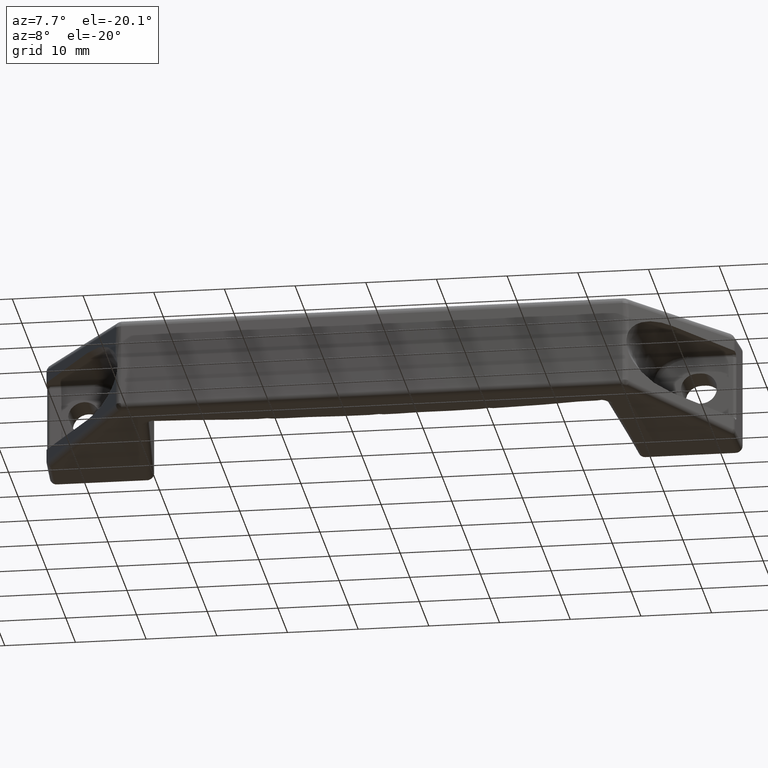
[diagram: clean part render]
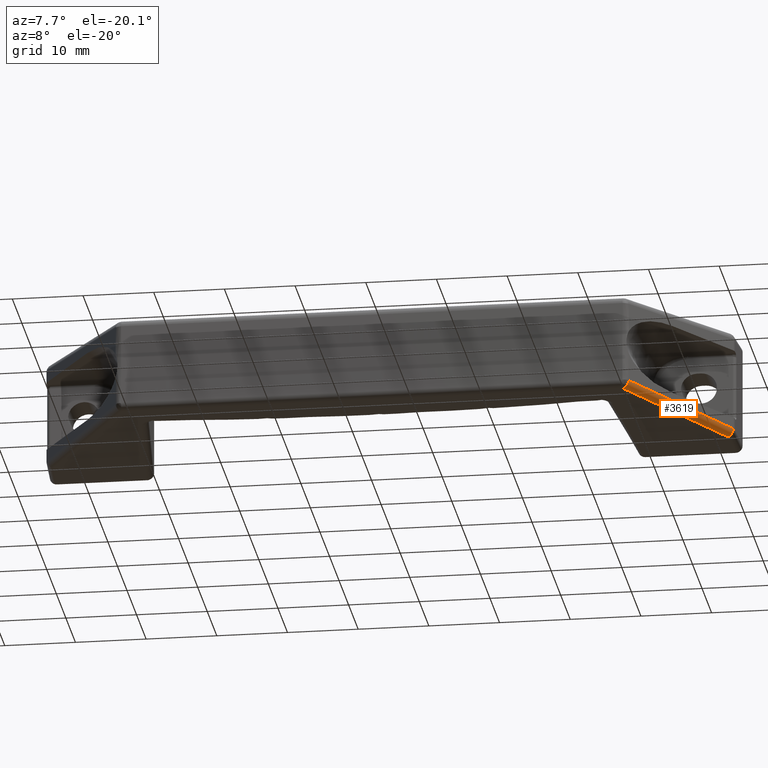
[diagram: same view with one face highlighted and labeled with its STEP entity id]
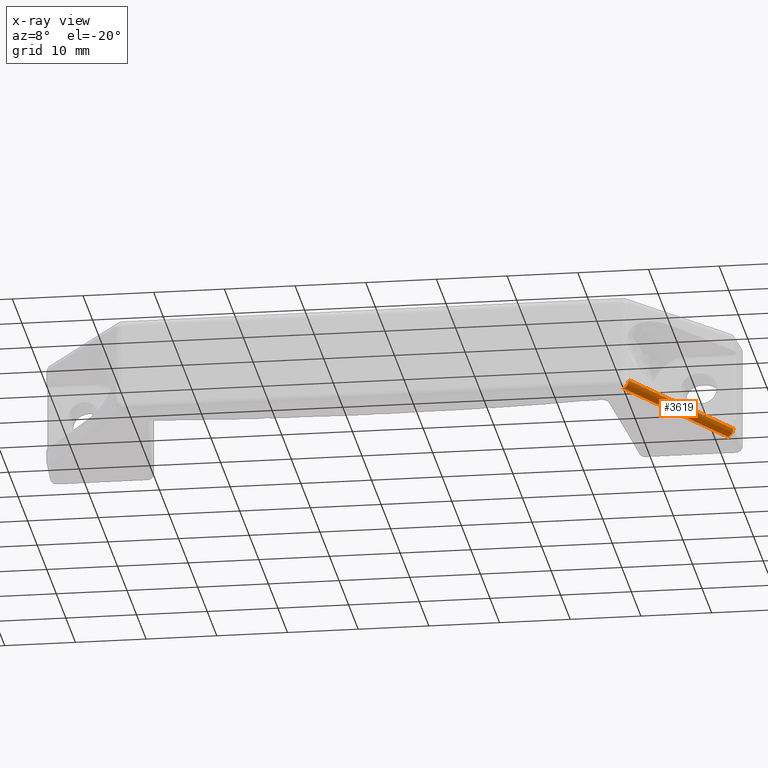
[diagram: x-ray of the same camera — body ghosted, the highlighted face saturated]
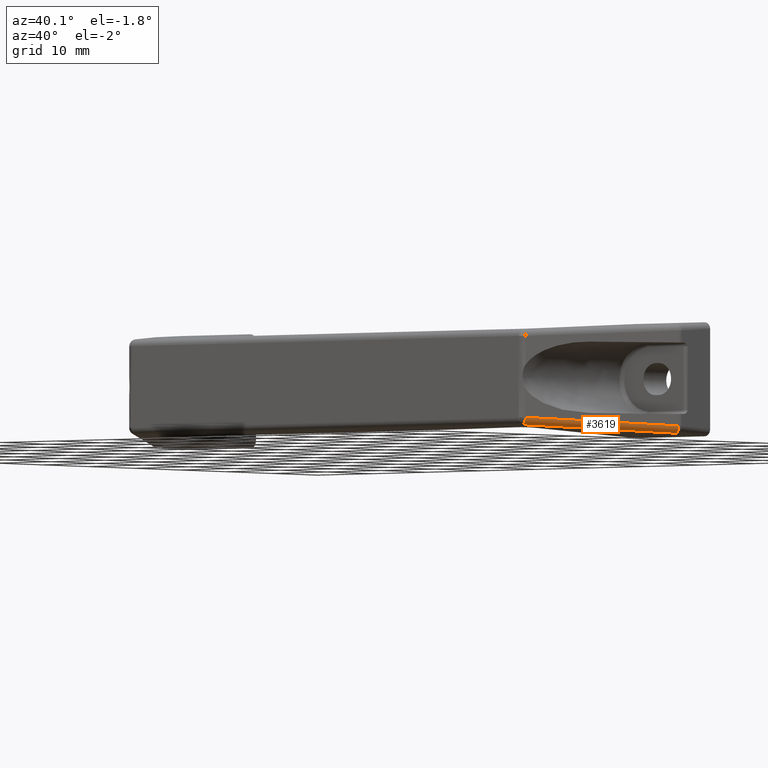
[diagram: same view with one face highlighted and labeled with its STEP entity id]
A machine part, auxiliary view. The second image highlights one B-rep face of the part: STEP entity #3619.
The next image is the same camera in x-ray: the body ghosted, the highlighted face saturated — about 0% of this face is hidden behind the body in this view.
A second angle (auxiliary view) of the same face is appended — the face is thin or edge-on in the first view.
In plain terms, the highlighted face is a freeform B-spline surface patch.
Its self-contained STEP definition (entity closure, byte-faithful):
#1230=CARTESIAN_POINT('',(92.035857409310410,-6.296472384027100,-6.697186841374100));
#1231=VERTEX_POINT('',#1230);
#1268=CARTESIAN_POINT('',(79.795714868306902,-25.144639035015100,-5.709396283639340));
#1269=VERTEX_POINT('',#1268);
#1275=CARTESIAN_POINT('',(79.795714868306902,-25.144639035015100,-5.709396283639340));
#1276=CARTESIAN_POINT('',(92.035857409310410,-6.296472384027100,-6.697186841374100));
#1277=QUASI_UNIFORM_CURVE('',1,(#1275,#1276),.UNSPECIFIED.,.F.,.U.);
#1278=EDGE_CURVE('',#1269,#1231,#1277,.T.);
#3251=CARTESIAN_POINT('',(78.957044300361289,-24.652335956243050,-6.708025818393899));
#3252=VERTEX_POINT('',#3251);
#3434=CARTESIAN_POINT('',(78.957044300361346,-24.652335956242968,-6.708025818393902));
#3435=CARTESIAN_POINT('',(79.772471757156424,-25.180430287525432,-6.680349567239372));
#3436=CARTESIAN_POINT('',(79.795714868306774,-25.144639035014951,-5.709396283639331));
#3444=(BOUNDED_CURVE()B_SPLINE_CURVE(2,(#3434,#3435,#3436),.UNSPECIFIED.,.F.,.U.)CURVE()GEOMETRIC_REPRESENTATION_ITEM()QUASI_UNIFORM_CURVE()RATIONAL_B_SPLINE_CURVE((1.0,0.717113730416870,1.0))REPRESENTATION_ITEM(''));
#3445=EDGE_CURVE('',#3252,#1269,#3444,.T.);
#3581=CARTESIAN_POINT('',(92.342169939197831,-5.823519806886399,-6.684691401987828));
#3582=CARTESIAN_POINT('',(79.482370182055845,-25.625874894580871,-5.646893947267585));
#3583=CARTESIAN_POINT('',(92.350085812295973,-5.885227623913173,-7.764057666003107));
#3584=CARTESIAN_POINT('',(79.490286055153987,-25.687582711607657,-6.726260211282878));
#3585=CARTESIAN_POINT('',(91.445154766443281,-5.295254230481549,-7.720088984897934));
#3586=CARTESIAN_POINT('',(78.585355009301281,-25.097609318176023,-6.682291530177699));
#3594=(BOUNDED_SURFACE()B_SPLINE_SURFACE(1,2,((#3581,#3583,#3585),(#3582,#3584,#3586)),.UNSPECIFIED.,.F.,.F.,.U.)B_SPLINE_SURFACE_WITH_KNOTS((2,2),(3,3),(0.0,23.634397398071162),(0.0,0.993697003120091),.UNSPECIFIED.)GEOMETRIC_REPRESENTATION_ITEM()RATIONAL_B_SPLINE_SURFACE(((1.0,0.677634961524871,0.995936268336599),(1.0,0.677634961524871,0.995936268336599)))REPRESENTATION_ITEM('')SURFACE());
#3595=CARTESIAN_POINT('',(91.197186841365095,-5.804169305254960,-7.695816376128810));
#3596=VERTEX_POINT('',#3595);
#3597=CARTESIAN_POINT('',(91.197186841365081,-5.804169305255003,-7.695816376128741));
#3598=CARTESIAN_POINT('',(92.012614298160059,-6.332263636537534,-7.668140124974169));
#3599=CARTESIAN_POINT('',(92.035857409310410,-6.296472384027057,-6.697186841374170));
#3607=(BOUNDED_CURVE()B_SPLINE_CURVE(2,(#3597,#3598,#3599),.UNSPECIFIED.,.F.,.U.)CURVE()GEOMETRIC_REPRESENTATION_ITEM()QUASI_UNIFORM_CURVE()RATIONAL_B_SPLINE_CURVE((1.0,0.717113730416885,1.0))REPRESENTATION_ITEM(''));
#3608=EDGE_CURVE('',#3596,#1231,#3607,.T.);
#3609=ORIENTED_EDGE('',*,*,#3608,.T.);
#3610=ORIENTED_EDGE('',*,*,#1278,.F.);
#3611=ORIENTED_EDGE('',*,*,#3445,.F.);
#3612=CARTESIAN_POINT('',(91.197186841365095,-5.804169305254960,-7.695816376128810));
#3613=CARTESIAN_POINT('',(78.957044300361289,-24.652335956243050,-6.708025818393899));
#3614=QUASI_UNIFORM_CURVE('',1,(#3612,#3613),.UNSPECIFIED.,.F.,.U.);
#3615=EDGE_CURVE('',#3596,#3252,#3614,.T.);
#3616=ORIENTED_EDGE('',*,*,#3615,.F.);
#3617=EDGE_LOOP('',(#3609,#3610,#3611,#3616));
#3618=FACE_OUTER_BOUND('',#3617,.T.);
#3619=ADVANCED_FACE('',(#3618),#3594,.T.);